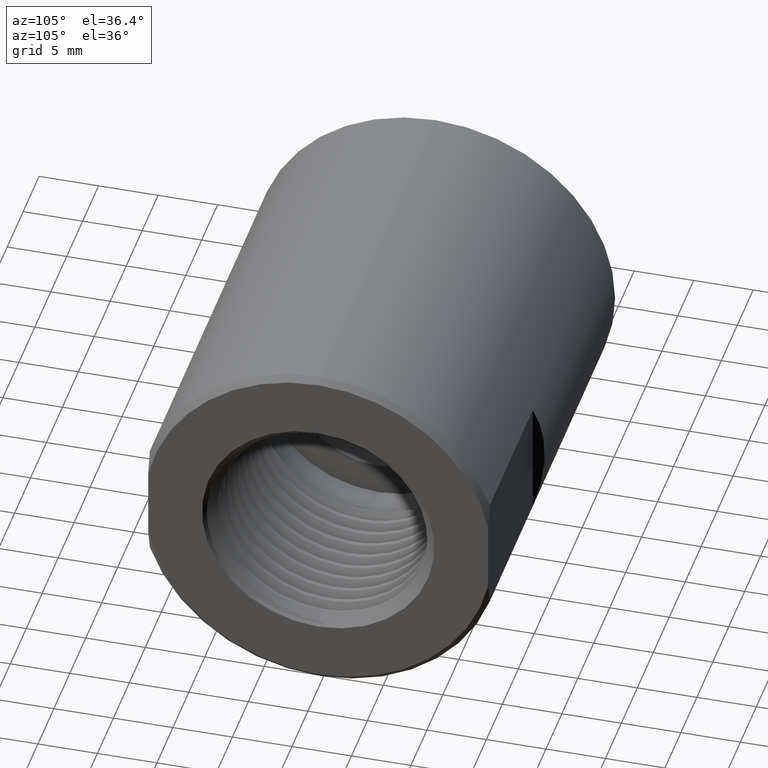
[diagram: clean part render]
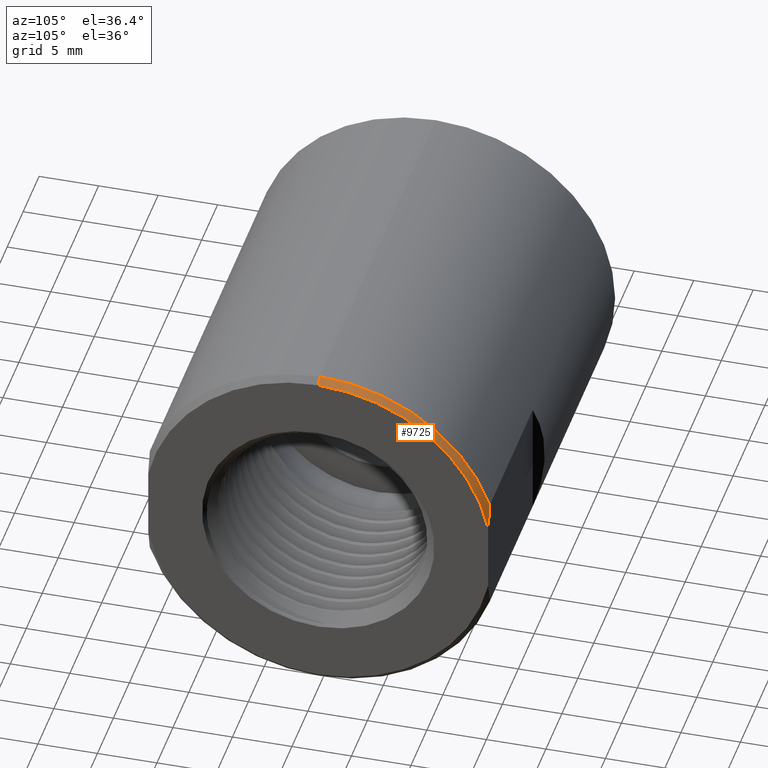
[diagram: same view with one face highlighted and labeled with its STEP entity id]
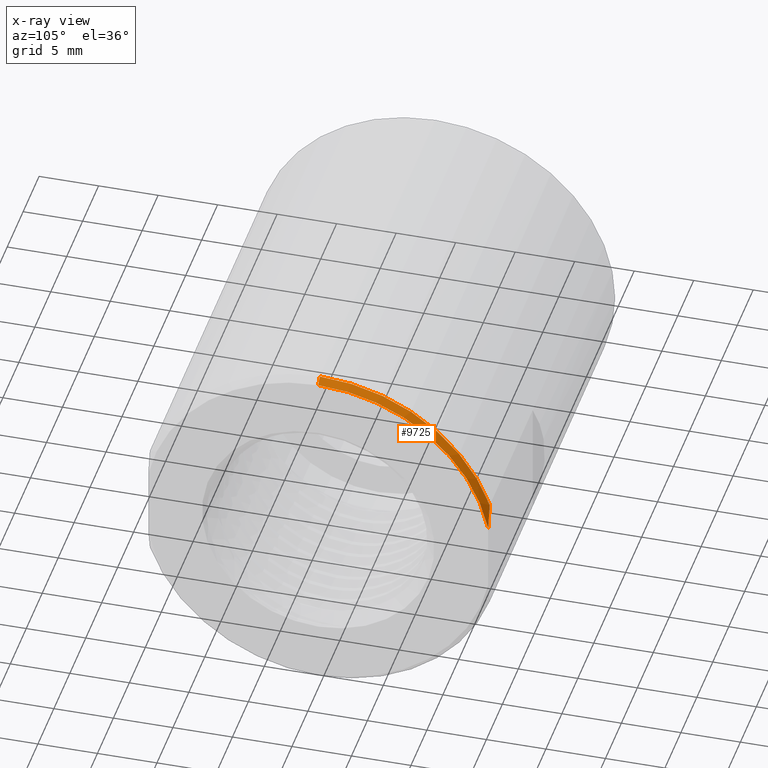
[diagram: x-ray of the same camera — body ghosted, the highlighted face saturated]
A machine part, auxiliary view. The second image highlights one B-rep face of the part: STEP entity #9725.
The next image is the same camera in x-ray: the body ghosted, the highlighted face saturated — about 0% of this face is hidden behind the body in this view.
In plain terms, the highlighted conical surface has half-angle 45 deg.
Its self-contained STEP definition (entity closure, byte-faithful):
#271 = CARTESIAN_POINT ( 'NONE',  ( 1.229999999999999982, 0.0000000000000000000, 0.5937999999999999945 ) ) ;
#532 = CARTESIAN_POINT ( 'NONE',  ( 1.250000000000000222, 0.0000000000000000000, 0.0000000000000000000 ) ) ;
#680 = AXIS2_PLACEMENT_3D ( 'NONE', #1563, #5281, #2413 ) ;
#790 = VERTEX_POINT ( 'NONE', #3618 ) ;
#944 = EDGE_CURVE ( 'NONE', #1075, #11117, #7690, .T. ) ;
#1075 = VERTEX_POINT ( 'NONE', #3650 ) ;
#1274 = CARTESIAN_POINT ( 'NONE',  ( 1.229999999999999982, 0.5623000000000000220, 0.1908327802029828879 ) ) ;
#1392 = DIRECTION ( 'NONE',  ( 0.0000000000000000000, 0.0000000000000000000, 1.000000000000000000 ) ) ;
#1563 = CARTESIAN_POINT ( 'NONE',  ( 1.229999999999999982, 0.0000000000000000000, 0.0000000000000000000 ) ) ;
#1790 = ORIENTED_EDGE ( 'NONE', *, *, #944, .F. ) ;
#1932 = EDGE_CURVE ( 'NONE', #11117, #8391, #3067, .T. ) ;
#2390 = AXIS2_PLACEMENT_3D ( 'NONE', #532, #6877, #1392 ) ;
#2413 = DIRECTION ( 'NONE',  ( 0.0000000000000000000, 0.0000000000000000000, 1.000000000000000000 ) ) ;
#2872 = EDGE_CURVE ( 'NONE', #790, #8391, #10843, .T. ) ;
#2925 = VECTOR ( 'NONE', #6797, 39.37007874015748143 ) ;
#3067 = B_SPLINE_CURVE_WITH_KNOTS ( 'NONE', 3,
 ( #1274, #3108, #6760, #6698 ),
 .UNSPECIFIED., .F., .F.,
 ( 4, 4 ),
 ( 0.03114258653906349511, 0.03314519912243485411 ),
 .UNSPECIFIED. ) ;
#3108 = CARTESIAN_POINT ( 'NONE',  ( 1.238034677629360036, 0.5623000000000000220, 0.1658318785170202203 ) ) ;
#3618 = CARTESIAN_POINT ( 'NONE',  ( 1.250000000000000222, 0.0000000000000000000, 0.5737999999999999767 ) ) ;
#3650 = CARTESIAN_POINT ( 'NONE',  ( 1.229999999999999982, 0.0000000000000000000, 0.5937999999999999945 ) ) ;
#3867 = ORIENTED_EDGE ( 'NONE', *, *, #1932, .F. ) ;
#3870 = CONICAL_SURFACE ( 'NONE', #9523, 0.5937999999999999945, 0.7853981633974397303 ) ;
#4212 = DIRECTION ( 'NONE',  ( -1.000000000000000000, -0.0000000000000000000, -0.0000000000000000000 ) ) ;
#4253 = ORIENTED_EDGE ( 'NONE', *, *, #2872, .T. ) ;
#4399 = FACE_OUTER_BOUND ( 'NONE', #8880, .T. ) ;
#5281 = DIRECTION ( 'NONE',  ( -1.000000000000000000, -0.0000000000000000000, -0.0000000000000000000 ) ) ;
#5826 = LINE ( 'NONE', #271, #2925 ) ;
#6282 = CARTESIAN_POINT ( 'NONE',  ( 1.229999999999999982, 0.0000000000000000000, 0.0000000000000000000 ) ) ;
#6618 = CARTESIAN_POINT ( 'NONE',  ( 1.250000000000000000, 0.5623000000000000220, 0.1143028871026462306 ) ) ;
#6698 = CARTESIAN_POINT ( 'NONE',  ( 1.250000000000000000, 0.5623000000000000220, 0.1143028871026462306 ) ) ;
#6760 = CARTESIAN_POINT ( 'NONE',  ( 1.244825155447440768, 0.5623000000000000220, 0.1402805844253038059 ) ) ;
#6797 = DIRECTION ( 'NONE',  ( -0.7071067811865535679, 0.0000000000000000000, 0.7071067811865414665 ) ) ;
#6877 = DIRECTION ( 'NONE',  ( -1.000000000000000000, -0.0000000000000000000, -0.0000000000000000000 ) ) ;
#7690 = CIRCLE ( 'NONE', #680, 0.5937999999999999945 ) ;
#8391 = VERTEX_POINT ( 'NONE', #6618 ) ;
#8554 = EDGE_CURVE ( 'NONE', #790, #1075, #5826, .T. ) ;
#8880 = EDGE_LOOP ( 'NONE', ( #11030, #4253, #3867, #1790 ) ) ;
#9523 = AXIS2_PLACEMENT_3D ( 'NONE', #6282, #4212, #11775 ) ;
#9551 = CARTESIAN_POINT ( 'NONE',  ( 1.229999999999999982, 0.5623000000000000220, 0.1908327802029828879 ) ) ;
#9725 = ADVANCED_FACE ( 'NONE', ( #4399 ), #3870, .T. ) ;
#10843 = CIRCLE ( 'NONE', #2390, 0.5737999999999999767 ) ;
#11030 = ORIENTED_EDGE ( 'NONE', *, *, #8554, .F. ) ;
#11117 = VERTEX_POINT ( 'NONE', #9551 ) ;
#11775 = DIRECTION ( 'NONE',  ( 0.0000000000000000000, 0.0000000000000000000, 1.000000000000000000 ) ) ;